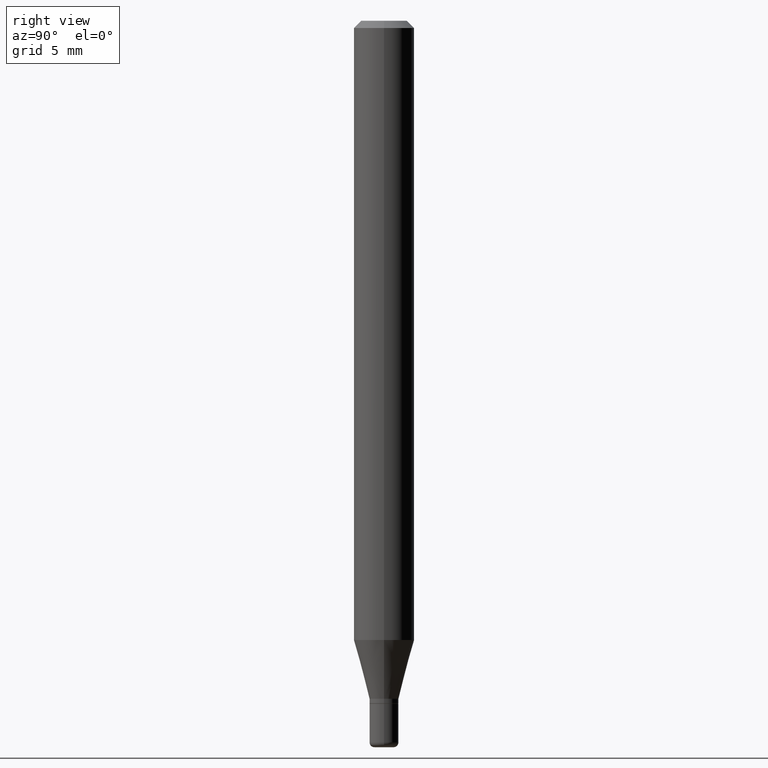
[diagram: clean part render]
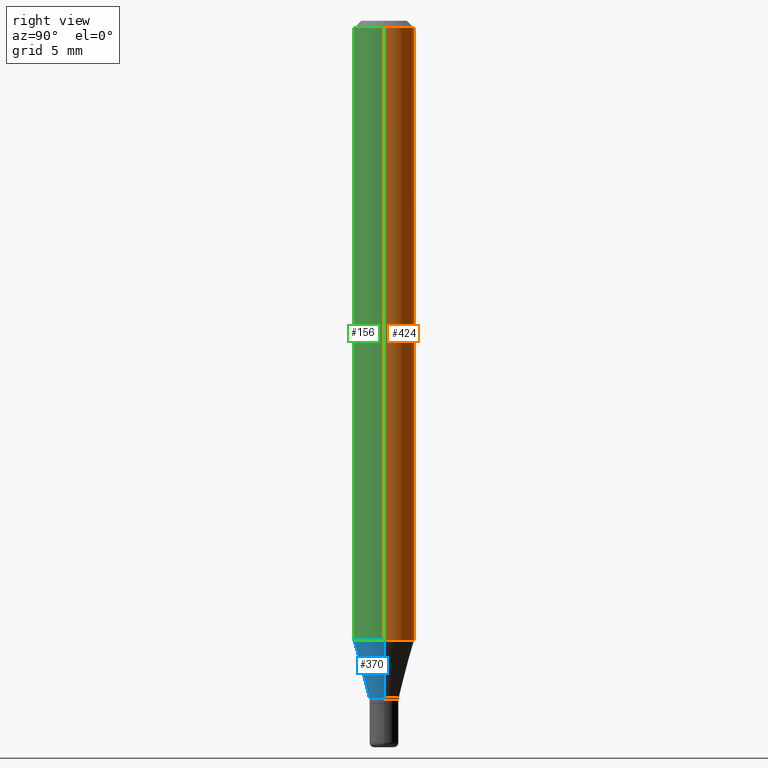
[diagram: same view with three faces highlighted in distinct colors, each labeled with its STEP entity id]
A machine part, right view with three faces highlighted in distinct colors.
Their STEP definitions:

[orange] entity #424 — the highlighted cylindrical surface (edge-blend (fillet) strip) has radius 1.5875 mm, axis along (-0, 0, 1).
#5 = VECTOR ( 'NONE', #306, 39.37007874015748143 ) ;
#8 = FACE_OUTER_BOUND ( 'NONE', #161, .T. ) ;
#13 = ORIENTED_EDGE ( 'NONE', *, *, #179, .F. ) ;
#24 = DIRECTION ( 'NONE',  ( -2.445468806185136877E-29, 3.491481338843145188E-15, 1.000000000000000000 ) ) ;
#47 = EDGE_CURVE ( 'NONE', #406, #167, #252, .T. ) ;
#62 = VERTEX_POINT ( 'NONE', #344 ) ;
#77 = VECTOR ( 'NONE', #24, 39.37007874015748143 ) ;
#90 = CARTESIAN_POINT ( 'NONE',  ( -0.06250000000000000000, 4.440892098500626162E-16, -3.074334431409316114E-30 ) ) ;
#112 = CIRCLE ( 'NONE', #430, 0.06250000000000000000 ) ;
#161 = EDGE_LOOP ( 'NONE', ( #440, #204, #13, #196 ) ) ;
#167 = VERTEX_POINT ( 'NONE', #236 ) ;
#179 = EDGE_CURVE ( 'NONE', #491, #167, #465, .T. ) ;
#196 = ORIENTED_EDGE ( 'NONE', *, *, #407, .F. ) ;
#199 = AXIS2_PLACEMENT_3D ( 'NONE', #246, #338, #413 ) ;
#204 = ORIENTED_EDGE ( 'NONE', *, *, #47, .T. ) ;
#205 = CARTESIAN_POINT ( 'NONE',  ( 0.000000000000000000, 0.000000000000000000, 0.000000000000000000 ) ) ;
#235 = DIRECTION ( 'NONE',  ( 1.000000000000000000, -6.982962677686262766E-15, 0.000000000000000000 ) ) ;
#236 = CARTESIAN_POINT ( 'NONE',  ( -0.06250000000000000000, -1.814390068940042580E-15, -0.01499999999999970281 ) ) ;
#240 = CYLINDRICAL_SURFACE ( 'NONE', #364, 0.06250000000000000000 ) ;
#246 = CARTESIAN_POINT ( 'NONE',  ( 3.668203209277632395E-31, -5.237222008264614861E-17, -0.01499999999999970281 ) ) ;
#252 = LINE ( 'NONE', #90, #5 ) ;
#272 = CARTESIAN_POINT ( 'NONE',  ( 3.127041379086440337E-29, -4.464586337497564496E-15, -1.278708348754011626 ) ) ;
#306 = DIRECTION ( 'NONE',  ( -2.445468806185136877E-29, 3.491481338843145188E-15, 1.000000000000000000 ) ) ;
#318 = CARTESIAN_POINT ( 'NONE',  ( -0.06250000000000000000, -4.020497127647501880E-15, -1.278708348754011626 ) ) ;
#338 = DIRECTION ( 'NONE',  ( -2.445468806185136597E-29, 3.491481338843145583E-15, 1.000000000000000000 ) ) ;
#339 = DIRECTION ( 'NONE',  ( -2.445468806185136597E-29, 3.491481338843145583E-15, 1.000000000000000000 ) ) ;
#344 = CARTESIAN_POINT ( 'NONE',  ( 0.06250000000000000000, -4.901021504852956166E-15, -1.278708348754011626 ) ) ;
#364 = AXIS2_PLACEMENT_3D ( 'NONE', #205, #339, #377 ) ;
#377 = DIRECTION ( 'NONE',  ( 1.000000000000000000, -6.982962677686266711E-15, 4.876176775795935793E-29 ) ) ;
#400 = LINE ( 'NONE', #459, #77 ) ;
#406 = VERTEX_POINT ( 'NONE', #318 ) ;
#407 = EDGE_CURVE ( 'NONE', #62, #491, #400, .T. ) ;
#413 = DIRECTION ( 'NONE',  ( 1.000000000000000000, -6.982962677686266711E-15, 0.000000000000000000 ) ) ;
#424 = ADVANCED_FACE ( 'NONE', ( #8 ), #240, .T. ) ;
#430 = AXIS2_PLACEMENT_3D ( 'NONE', #272, #508, #235 ) ;
#440 = ORIENTED_EDGE ( 'NONE', *, *, #477, .T. ) ;
#459 = CARTESIAN_POINT ( 'NONE',  ( 0.06250000000000000000, -4.364351673553916694E-16, 3.047610484872459871E-30 ) ) ;
#465 = CIRCLE ( 'NONE', #199, 0.06250000000000000000 ) ;
#473 = CARTESIAN_POINT ( 'NONE',  ( 0.06250000000000000000, -4.888073874380378612E-16, -0.01499999999999970281 ) ) ;
#477 = EDGE_CURVE ( 'NONE', #62, #406, #112, .T. ) ;
#491 = VERTEX_POINT ( 'NONE', #473 ) ;
#508 = DIRECTION ( 'NONE',  ( -2.445468806185136597E-29, 3.491481338843145583E-15, 1.000000000000000000 ) ) ;

[blue] entity #370 — the highlighted conical surface has half-angle 15 deg.
#17 = VERTEX_POINT ( 'NONE', #340 ) ;
#33 = CIRCLE ( 'NONE', #278, 0.02999999999999997807 ) ;
#42 = EDGE_LOOP ( 'NONE', ( #200, #366, #260, #416 ) ) ;
#62 = VERTEX_POINT ( 'NONE', #344 ) ;
#67 = AXIS2_PLACEMENT_3D ( 'NONE', #316, #504, #71 ) ;
#71 = DIRECTION ( 'NONE',  ( 1.000000000000000000, -6.982962677686273021E-15, 0.000000000000000000 ) ) ;
#72 = DIRECTION ( 'NONE',  ( 1.000000000000000000, -6.982962677686273021E-15, 0.000000000000000000 ) ) ;
#95 = VECTOR ( 'NONE', #343, 39.37007874015748854 ) ;
#98 = EDGE_CURVE ( 'NONE', #250, #406, #133, .T. ) ;
#104 = CARTESIAN_POINT ( 'NONE',  ( 3.423656328659191123E-29, -4.888073874380404052E-15, -1.400000000000000133 ) ) ;
#108 = FACE_OUTER_BOUND ( 'NONE', #42, .T. ) ;
#127 = CARTESIAN_POINT ( 'NONE',  ( -0.02999999999999997807, -4.674911053652373807E-15, -1.400000000000000133 ) ) ;
#132 = LINE ( 'NONE', #450, #515 ) ;
#133 = LINE ( 'NONE', #127, #95 ) ;
#145 = DIRECTION ( 'NONE',  ( -2.445468806185136597E-29, 3.491481338843145583E-15, 1.000000000000000000 ) ) ;
#146 = CARTESIAN_POINT ( 'NONE',  ( 3.127041379086440337E-29, -4.464586337497564496E-15, -1.278708348754011626 ) ) ;
#185 = DIRECTION ( 'NONE',  ( 1.000000000000000000, -6.982962677686262766E-15, 0.000000000000000000 ) ) ;
#200 = ORIENTED_EDGE ( 'NONE', *, *, #98, .F. ) ;
#226 = EDGE_CURVE ( 'NONE', #17, #62, #132, .T. ) ;
#239 = AXIS2_PLACEMENT_3D ( 'NONE', #146, #458, #185 ) ;
#250 = VERTEX_POINT ( 'NONE', #307 ) ;
#260 = ORIENTED_EDGE ( 'NONE', *, *, #226, .T. ) ;
#278 = AXIS2_PLACEMENT_3D ( 'NONE', #104, #145, #72 ) ;
#282 = EDGE_CURVE ( 'NONE', #406, #62, #446, .T. ) ;
#307 = CARTESIAN_POINT ( 'NONE',  ( -0.02999999999999997807, -4.347704090649937844E-15, -1.400000000000000133 ) ) ;
#316 = CARTESIAN_POINT ( 'NONE',  ( 3.423656328659191123E-29, -4.888073874380404052E-15, -1.400000000000000133 ) ) ;
#318 = CARTESIAN_POINT ( 'NONE',  ( -0.06250000000000000000, -4.020497127647501880E-15, -1.278708348754011626 ) ) ;
#340 = CARTESIAN_POINT ( 'NONE',  ( 0.02999999999999997807, -5.097562754710991580E-15, -1.400000000000000133 ) ) ;
#343 = DIRECTION ( 'NONE',  ( -0.2588190451025211281, 5.211531920934547886E-15, 0.9659258262890679791 ) ) ;
#344 = CARTESIAN_POINT ( 'NONE',  ( 0.06250000000000000000, -4.901021504852956166E-15, -1.278708348754011626 ) ) ;
#366 = ORIENTED_EDGE ( 'NONE', *, *, #404, .T. ) ;
#370 = ADVANCED_FACE ( 'NONE', ( #108 ), #486, .T. ) ;
#404 = EDGE_CURVE ( 'NONE', #250, #17, #33, .T. ) ;
#406 = VERTEX_POINT ( 'NONE', #318 ) ;
#416 = ORIENTED_EDGE ( 'NONE', *, *, #282, .F. ) ;
#421 = DIRECTION ( 'NONE',  ( 0.2588190451025211281, 1.565188264969622954E-15, 0.9659258262890679791 ) ) ;
#446 = CIRCLE ( 'NONE', #239, 0.06250000000000000000 ) ;
#450 = CARTESIAN_POINT ( 'NONE',  ( 0.02999999999999997807, -5.097562754710991580E-15, -1.400000000000000133 ) ) ;
#458 = DIRECTION ( 'NONE',  ( -2.445468806185136597E-29, 3.491481338843145583E-15, 1.000000000000000000 ) ) ;
#486 = CONICAL_SURFACE ( 'NONE', #67, 0.02999999999999997807, 0.2617993877991498519 ) ;
#504 = DIRECTION ( 'NONE',  ( -2.445468806185136597E-29, 3.491481338843145583E-15, 1.000000000000000000 ) ) ;
#515 = VECTOR ( 'NONE', #421, 39.37007874015748854 ) ;

[green] entity #156 — the highlighted cylindrical surface (edge-blend (fillet) strip) has radius 1.5875 mm, axis along (-0, 0, 1).
#5 = VECTOR ( 'NONE', #306, 39.37007874015748143 ) ;
#24 = DIRECTION ( 'NONE',  ( -2.445468806185136877E-29, 3.491481338843145188E-15, 1.000000000000000000 ) ) ;
#34 = ORIENTED_EDGE ( 'NONE', *, *, #407, .T. ) ;
#37 = ORIENTED_EDGE ( 'NONE', *, *, #47, .F. ) ;
#40 = CARTESIAN_POINT ( 'NONE',  ( 0.000000000000000000, 0.000000000000000000, 0.000000000000000000 ) ) ;
#47 = EDGE_CURVE ( 'NONE', #406, #167, #252, .T. ) ;
#62 = VERTEX_POINT ( 'NONE', #344 ) ;
#66 = AXIS2_PLACEMENT_3D ( 'NONE', #40, #514, #76 ) ;
#68 = FACE_OUTER_BOUND ( 'NONE', #288, .T. ) ;
#76 = DIRECTION ( 'NONE',  ( 1.000000000000000000, -6.982962677686266711E-15, 4.876176775795935793E-29 ) ) ;
#77 = VECTOR ( 'NONE', #24, 39.37007874015748143 ) ;
#90 = CARTESIAN_POINT ( 'NONE',  ( -0.06250000000000000000, 4.440892098500626162E-16, -3.074334431409316114E-30 ) ) ;
#96 = CIRCLE ( 'NONE', #438, 0.06250000000000000000 ) ;
#131 = ORIENTED_EDGE ( 'NONE', *, *, #282, .T. ) ;
#146 = CARTESIAN_POINT ( 'NONE',  ( 3.127041379086440337E-29, -4.464586337497564496E-15, -1.278708348754011626 ) ) ;
#156 = ADVANCED_FACE ( 'NONE', ( #68 ), #280, .T. ) ;
#167 = VERTEX_POINT ( 'NONE', #236 ) ;
#180 = ORIENTED_EDGE ( 'NONE', *, *, #274, .F. ) ;
#185 = DIRECTION ( 'NONE',  ( 1.000000000000000000, -6.982962677686262766E-15, 0.000000000000000000 ) ) ;
#188 = DIRECTION ( 'NONE',  ( 1.000000000000000000, -6.982962677686266711E-15, 0.000000000000000000 ) ) ;
#236 = CARTESIAN_POINT ( 'NONE',  ( -0.06250000000000000000, -1.814390068940042580E-15, -0.01499999999999970281 ) ) ;
#239 = AXIS2_PLACEMENT_3D ( 'NONE', #146, #458, #185 ) ;
#252 = LINE ( 'NONE', #90, #5 ) ;
#261 = CARTESIAN_POINT ( 'NONE',  ( 3.668203209277632395E-31, -5.237222008264614861E-17, -0.01499999999999970281 ) ) ;
#274 = EDGE_CURVE ( 'NONE', #167, #491, #96, .T. ) ;
#280 = CYLINDRICAL_SURFACE ( 'NONE', #66, 0.06250000000000000000 ) ;
#282 = EDGE_CURVE ( 'NONE', #406, #62, #446, .T. ) ;
#288 = EDGE_LOOP ( 'NONE', ( #37, #131, #34, #180 ) ) ;
#306 = DIRECTION ( 'NONE',  ( -2.445468806185136877E-29, 3.491481338843145188E-15, 1.000000000000000000 ) ) ;
#318 = CARTESIAN_POINT ( 'NONE',  ( -0.06250000000000000000, -4.020497127647501880E-15, -1.278708348754011626 ) ) ;
#344 = CARTESIAN_POINT ( 'NONE',  ( 0.06250000000000000000, -4.901021504852956166E-15, -1.278708348754011626 ) ) ;
#387 = DIRECTION ( 'NONE',  ( -2.445468806185136597E-29, 3.491481338843145583E-15, 1.000000000000000000 ) ) ;
#400 = LINE ( 'NONE', #459, #77 ) ;
#406 = VERTEX_POINT ( 'NONE', #318 ) ;
#407 = EDGE_CURVE ( 'NONE', #62, #491, #400, .T. ) ;
#438 = AXIS2_PLACEMENT_3D ( 'NONE', #261, #387, #188 ) ;
#446 = CIRCLE ( 'NONE', #239, 0.06250000000000000000 ) ;
#458 = DIRECTION ( 'NONE',  ( -2.445468806185136597E-29, 3.491481338843145583E-15, 1.000000000000000000 ) ) ;
#459 = CARTESIAN_POINT ( 'NONE',  ( 0.06250000000000000000, -4.364351673553916694E-16, 3.047610484872459871E-30 ) ) ;
#473 = CARTESIAN_POINT ( 'NONE',  ( 0.06250000000000000000, -4.888073874380378612E-16, -0.01499999999999970281 ) ) ;
#491 = VERTEX_POINT ( 'NONE', #473 ) ;
#514 = DIRECTION ( 'NONE',  ( -2.445468806185136597E-29, 3.491481338843145583E-15, 1.000000000000000000 ) ) ;